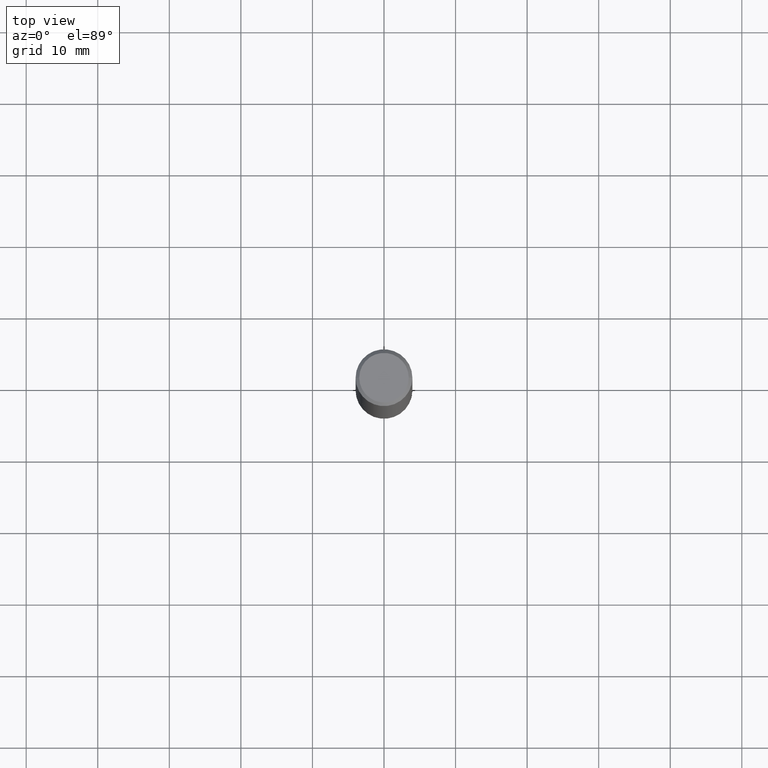
[diagram: clean part render]
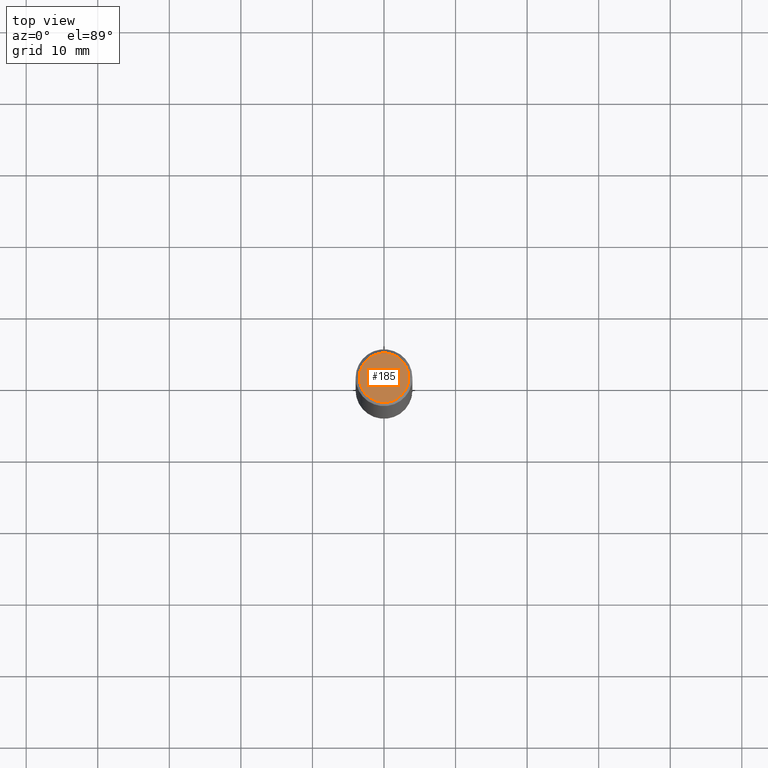
[diagram: same view with one face highlighted and labeled with its STEP entity id]
A machine part, top view. The second image highlights one B-rep face of the part: STEP entity #185.
In plain terms, the highlighted planar face has unit normal (0, -0, -1).
Its self-contained STEP definition (entity closure, byte-faithful):
#5 = CARTESIAN_POINT ( 'NONE',  ( 0.000000000000000000, 0.000000000000000000, 0.000000000000000000 ) ) ;
#25 = EDGE_CURVE ( 'NONE', #281, #214, #39, .T. ) ;
#39 = CIRCLE ( 'NONE', #135, 0.1362499999999997324 ) ;
#55 = CIRCLE ( 'NONE', #301, 0.1362499999999997324 ) ;
#81 = CARTESIAN_POINT ( 'NONE',  ( 9.514286648347519855E-16, 0.1362499999999997324, -4.757143324173776691E-16 ) ) ;
#106 = AXIS2_PLACEMENT_3D ( 'NONE', #81, #316, #164 ) ;
#112 = DIRECTION ( 'NONE',  ( -2.445468806185136597E-29, 3.491481338843145583E-15, 1.000000000000000000 ) ) ;
#135 = AXIS2_PLACEMENT_3D ( 'NONE', #5, #112, #186 ) ;
#164 = DIRECTION ( 'NONE',  ( -1.000000000000000000, 6.982962677686265922E-15, -4.876176775795935793E-29 ) ) ;
#182 = ORIENTED_EDGE ( 'NONE', *, *, #25, .T. ) ;
#185 = ADVANCED_FACE ( 'NONE', ( #255 ), #196, .F. ) ;
#186 = DIRECTION ( 'NONE',  ( 1.000000000000000000, -6.982962677686266711E-15, 4.876176775795936353E-29 ) ) ;
#188 = CARTESIAN_POINT ( 'NONE',  ( 0.1362499999999997324, -1.038262645562516152E-15, 6.957025900226682464E-30 ) ) ;
#196 = PLANE ( 'NONE',  #106 ) ;
#210 = ORIENTED_EDGE ( 'NONE', *, *, #356, .T. ) ;
#214 = VERTEX_POINT ( 'NONE', #188 ) ;
#234 = CARTESIAN_POINT ( 'NONE',  ( -0.1362499999999997324, 9.863434782231830429E-16, -6.775751096333125871E-30 ) ) ;
#255 = FACE_OUTER_BOUND ( 'NONE', #292, .T. ) ;
#264 = DIRECTION ( 'NONE',  ( 1.000000000000000000, -6.982962677686266711E-15, 4.876176775795936353E-29 ) ) ;
#281 = VERTEX_POINT ( 'NONE', #234 ) ;
#292 = EDGE_LOOP ( 'NONE', ( #182, #210 ) ) ;
#300 = CARTESIAN_POINT ( 'NONE',  ( 0.000000000000000000, 0.000000000000000000, 0.000000000000000000 ) ) ;
#301 = AXIS2_PLACEMENT_3D ( 'NONE', #300, #352, #264 ) ;
#316 = DIRECTION ( 'NONE',  ( 2.438088387897960049E-29, -3.491481338843145188E-15, -1.000000000000000000 ) ) ;
#352 = DIRECTION ( 'NONE',  ( -2.445468806185136597E-29, 3.491481338843145583E-15, 1.000000000000000000 ) ) ;
#356 = EDGE_CURVE ( 'NONE', #214, #281, #55, .T. ) ;